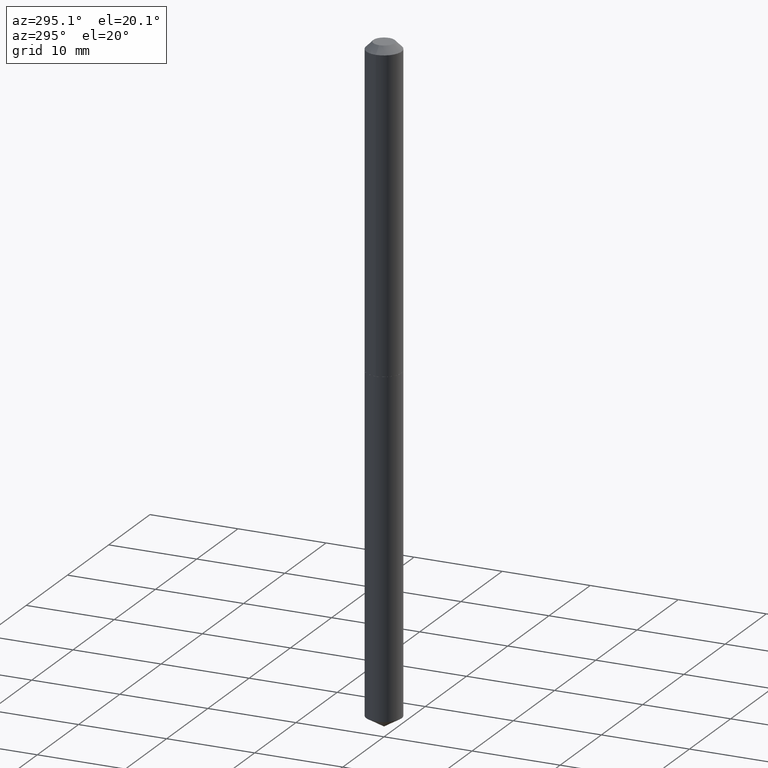
[diagram: clean part render]
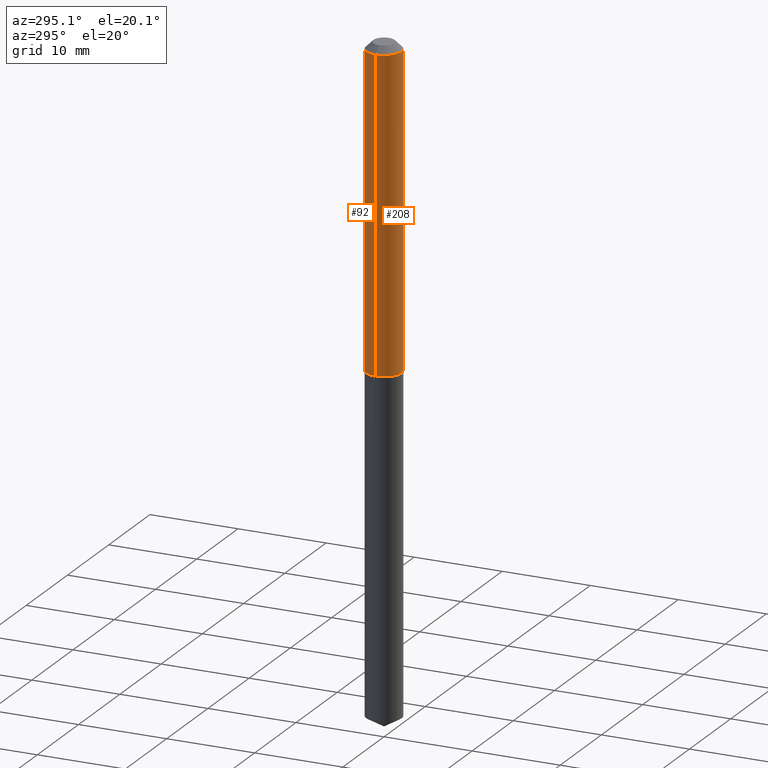
[diagram: same view with one multi-face feature highlighted, each face labeled with its STEP entity id]
A machine part, auxiliary view. The highlighted faces form ONE feature: a constant-radius fillet chain: 2 tangent blend faces with common blend radius 2.0003 mm. The faces share edges in the B-rep.
Their STEP definitions:
[1] entity #92 (Cylinder):
#6 = CARTESIAN_POINT ( 'NONE',  ( 0.07875000000000008382, -5.499083108677941345E-16, 3.839989210939303220E-30 ) ) ;
#16 = DIRECTION ( 'NONE',  ( 1.000000000000000000, -6.982962677686261189E-15, 0.000000000000000000 ) ) ;
#36 = EDGE_CURVE ( 'NONE', #221, #168, #129, .T. ) ;
#38 = DIRECTION ( 'NONE',  ( 1.000000000000000000, -6.982962677686267499E-15, 4.876176775795935232E-29 ) ) ;
#46 = VECTOR ( 'NONE', #376, 39.37007874015748143 ) ;
#81 = VERTEX_POINT ( 'NONE', #144 ) ;
#92 = ADVANCED_FACE ( 'NONE', ( #184 ), #176, .T. ) ;
#97 = DIRECTION ( 'NONE',  ( -2.445468806185136597E-29, 3.491481338843145583E-15, 1.000000000000000000 ) ) ;
#100 = CARTESIAN_POINT ( 'NONE',  ( 7.642090019328601786E-31, -1.091087918388490144E-16, -0.03125000000000020123 ) ) ;
#106 = CARTESIAN_POINT ( 'NONE',  ( 0.07875000000000000056, -6.590171027066424463E-16, -0.03125000000000020123 ) ) ;
#108 = ORIENTED_EDGE ( 'NONE', *, *, #36, .F. ) ;
#120 = EDGE_CURVE ( 'NONE', #142, #221, #153, .T. ) ;
#129 = CIRCLE ( 'NONE', #234, 0.07875000000000000056 ) ;
#130 = CIRCLE ( 'NONE', #265, 0.07875000000000015321 ) ;
#142 = VERTEX_POINT ( 'NONE', #362 ) ;
#144 = CARTESIAN_POINT ( 'NONE',  ( -0.07875000000000015321, -4.387527504595772071E-15, -1.416899999999999826 ) ) ;
#151 = CARTESIAN_POINT ( 'NONE',  ( 0.000000000000000000, 0.000000000000000000, 0.000000000000000000 ) ) ;
#153 = LINE ( 'NONE', #6, #284 ) ;
#167 = DIRECTION ( 'NONE',  ( -2.445468806185136597E-29, 3.491481338843145583E-15, 1.000000000000000000 ) ) ;
#168 = VERTEX_POINT ( 'NONE', #356 ) ;
#176 = CYLINDRICAL_SURFACE ( 'NONE', #255, 0.07875000000000008382 ) ;
#184 = FACE_OUTER_BOUND ( 'NONE', #200, .T. ) ;
#191 = ORIENTED_EDGE ( 'NONE', *, *, #120, .F. ) ;
#200 = EDGE_LOOP ( 'NONE', ( #286, #368, #108, #191 ) ) ;
#205 = EDGE_CURVE ( 'NONE', #81, #168, #339, .T. ) ;
#220 = CARTESIAN_POINT ( 'NONE',  ( 3.464984751483719742E-29, -4.947079909006852451E-15, -1.416899999999999826 ) ) ;
#221 = VERTEX_POINT ( 'NONE', #106 ) ;
#234 = AXIS2_PLACEMENT_3D ( 'NONE', #100, #97, #303 ) ;
#248 = EDGE_CURVE ( 'NONE', #142, #81, #130, .T. ) ;
#255 = AXIS2_PLACEMENT_3D ( 'NONE', #151, #259, #38 ) ;
#259 = DIRECTION ( 'NONE',  ( -2.445468806185136597E-29, 3.491481338843145583E-15, 1.000000000000000000 ) ) ;
#265 = AXIS2_PLACEMENT_3D ( 'NONE', #220, #167, #16 ) ;
#271 = DIRECTION ( 'NONE',  ( -2.445468806185136877E-29, 3.491481338843145188E-15, 1.000000000000000000 ) ) ;
#284 = VECTOR ( 'NONE', #271, 39.37007874015748143 ) ;
#286 = ORIENTED_EDGE ( 'NONE', *, *, #248, .T. ) ;
#303 = DIRECTION ( 'NONE',  ( 1.000000000000000000, -6.982962677686264344E-15, 0.000000000000000000 ) ) ;
#339 = LINE ( 'NONE', #379, #46 ) ;
#356 = CARTESIAN_POINT ( 'NONE',  ( -0.07875000000000000056, -1.968541946011770002E-15, -0.03125000000000020123 ) ) ;
#362 = CARTESIAN_POINT ( 'NONE',  ( 0.07875000000000015321, -5.496988219874646585E-15, -1.416899999999999826 ) ) ;
#368 = ORIENTED_EDGE ( 'NONE', *, *, #205, .T. ) ;
#376 = DIRECTION ( 'NONE',  ( -2.445468806185136877E-29, 3.491481338843145188E-15, 1.000000000000000000 ) ) ;
#379 = CARTESIAN_POINT ( 'NONE',  ( -0.07875000000000008382, 5.595524044110794920E-16, -3.873661383575742696E-30 ) ) ;
[2] entity #208 (Cylinder):
#6 = CARTESIAN_POINT ( 'NONE',  ( 0.07875000000000008382, -5.499083108677941345E-16, 3.839989210939303220E-30 ) ) ;
#25 = ORIENTED_EDGE ( 'NONE', *, *, #120, .T. ) ;
#44 = CARTESIAN_POINT ( 'NONE',  ( 7.642090019328601786E-31, -1.091087918388490144E-16, -0.03125000000000020123 ) ) ;
#46 = VECTOR ( 'NONE', #376, 39.37007874015748143 ) ;
#51 = DIRECTION ( 'NONE',  ( -2.445468806185136597E-29, 3.491481338843145583E-15, 1.000000000000000000 ) ) ;
#70 = CARTESIAN_POINT ( 'NONE',  ( 0.000000000000000000, 0.000000000000000000, 0.000000000000000000 ) ) ;
#81 = VERTEX_POINT ( 'NONE', #144 ) ;
#86 = AXIS2_PLACEMENT_3D ( 'NONE', #70, #103, #215 ) ;
#96 = CIRCLE ( 'NONE', #377, 0.07875000000000015321 ) ;
#103 = DIRECTION ( 'NONE',  ( -2.445468806185136597E-29, 3.491481338843145583E-15, 1.000000000000000000 ) ) ;
#104 = ORIENTED_EDGE ( 'NONE', *, *, #337, .F. ) ;
#106 = CARTESIAN_POINT ( 'NONE',  ( 0.07875000000000000056, -6.590171027066424463E-16, -0.03125000000000020123 ) ) ;
#120 = EDGE_CURVE ( 'NONE', #142, #221, #153, .T. ) ;
#131 = DIRECTION ( 'NONE',  ( -2.445468806185136597E-29, 3.491481338843145583E-15, 1.000000000000000000 ) ) ;
#134 = CARTESIAN_POINT ( 'NONE',  ( 3.464984751483719742E-29, -4.947079909006852451E-15, -1.416899999999999826 ) ) ;
#137 = DIRECTION ( 'NONE',  ( 1.000000000000000000, -6.982962677686261189E-15, 0.000000000000000000 ) ) ;
#140 = ORIENTED_EDGE ( 'NONE', *, *, #244, .T. ) ;
#142 = VERTEX_POINT ( 'NONE', #362 ) ;
#144 = CARTESIAN_POINT ( 'NONE',  ( -0.07875000000000015321, -4.387527504595772071E-15, -1.416899999999999826 ) ) ;
#153 = LINE ( 'NONE', #6, #284 ) ;
#161 = DIRECTION ( 'NONE',  ( 1.000000000000000000, -6.982962677686264344E-15, 0.000000000000000000 ) ) ;
#165 = CYLINDRICAL_SURFACE ( 'NONE', #86, 0.07875000000000008382 ) ;
#168 = VERTEX_POINT ( 'NONE', #356 ) ;
#205 = EDGE_CURVE ( 'NONE', #81, #168, #339, .T. ) ;
#208 = ADVANCED_FACE ( 'NONE', ( #346 ), #165, .T. ) ;
#215 = DIRECTION ( 'NONE',  ( 1.000000000000000000, -6.982962677686267499E-15, 4.876176775795935232E-29 ) ) ;
#221 = VERTEX_POINT ( 'NONE', #106 ) ;
#226 = EDGE_LOOP ( 'NONE', ( #250, #140, #25, #104 ) ) ;
#244 = EDGE_CURVE ( 'NONE', #81, #142, #96, .T. ) ;
#250 = ORIENTED_EDGE ( 'NONE', *, *, #205, .F. ) ;
#271 = DIRECTION ( 'NONE',  ( -2.445468806185136877E-29, 3.491481338843145188E-15, 1.000000000000000000 ) ) ;
#284 = VECTOR ( 'NONE', #271, 39.37007874015748143 ) ;
#331 = AXIS2_PLACEMENT_3D ( 'NONE', #44, #131, #161 ) ;
#337 = EDGE_CURVE ( 'NONE', #168, #221, #370, .T. ) ;
#339 = LINE ( 'NONE', #379, #46 ) ;
#346 = FACE_OUTER_BOUND ( 'NONE', #226, .T. ) ;
#356 = CARTESIAN_POINT ( 'NONE',  ( -0.07875000000000000056, -1.968541946011770002E-15, -0.03125000000000020123 ) ) ;
#362 = CARTESIAN_POINT ( 'NONE',  ( 0.07875000000000015321, -5.496988219874646585E-15, -1.416899999999999826 ) ) ;
#370 = CIRCLE ( 'NONE', #331, 0.07875000000000000056 ) ;
#376 = DIRECTION ( 'NONE',  ( -2.445468806185136877E-29, 3.491481338843145188E-15, 1.000000000000000000 ) ) ;
#377 = AXIS2_PLACEMENT_3D ( 'NONE', #134, #51, #137 ) ;
#379 = CARTESIAN_POINT ( 'NONE',  ( -0.07875000000000008382, 5.595524044110794920E-16, -3.873661383575742696E-30 ) ) ;